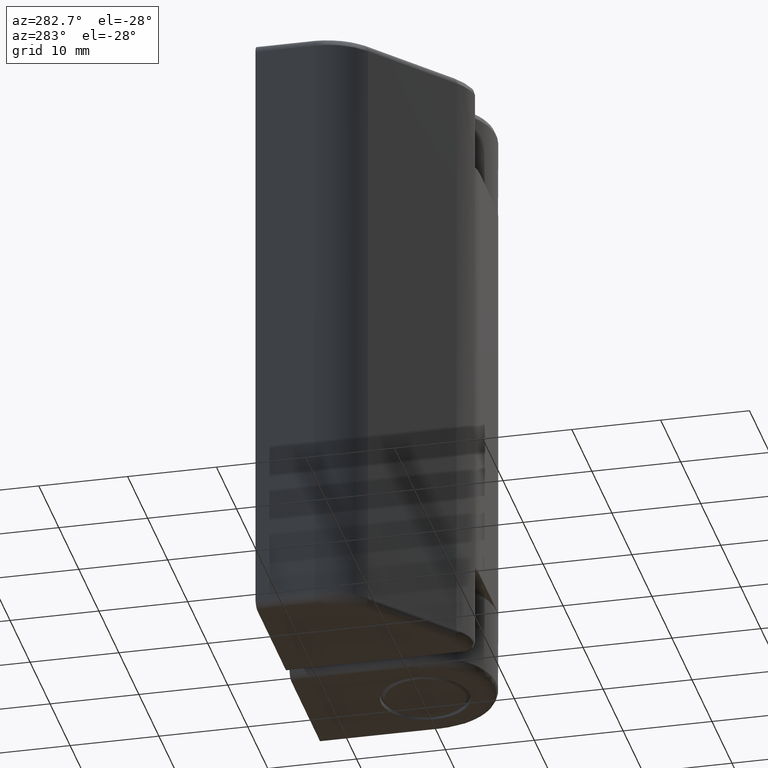
[diagram: clean part render]
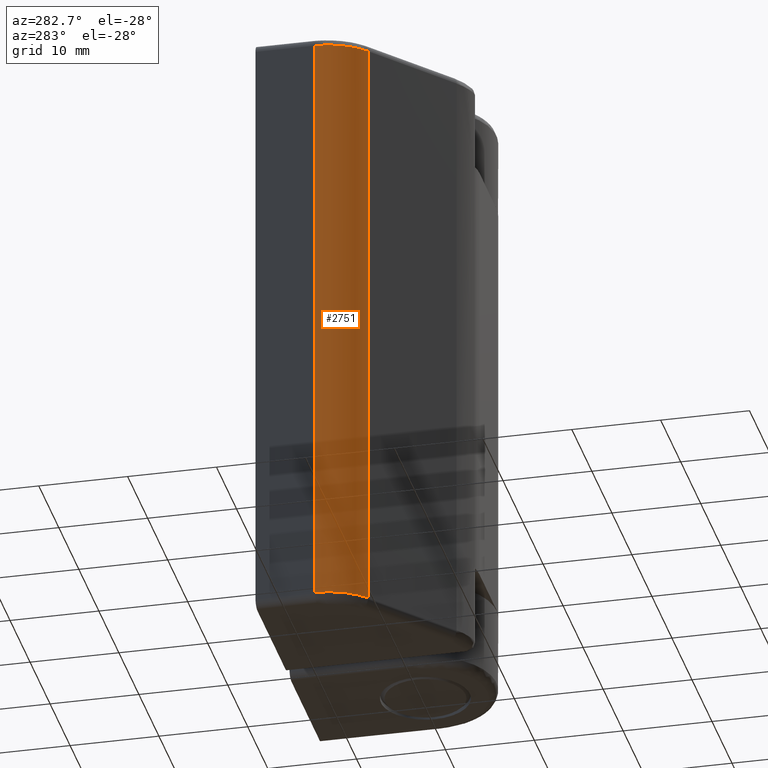
[diagram: same view with one face highlighted and labeled with its STEP entity id]
A machine part, auxiliary view. The second image highlights one B-rep face of the part: STEP entity #2751.
In plain terms, the highlighted face is a freeform B-spline surface patch.
Its self-contained STEP definition (entity closure, byte-faithful):
#1661=CARTESIAN_POINT('',(-25.0,6.808834000000000,1.0));
#1662=VERTEX_POINT('',#1661);
#1703=CARTESIAN_POINT('',(-22.448097949442602,1.403797031378750,1.0));
#1704=VERTEX_POINT('',#1703);
#1718=CARTESIAN_POINT('',(-25.0,6.808834000000000,1.0));
#1719=CARTESIAN_POINT('',(-24.999999999999993,3.503895577264769,1.0));
#1720=CARTESIAN_POINT('',(-22.448097949442602,1.403797031378750,1.0));
#1728=(BOUNDED_CURVE()B_SPLINE_CURVE(2,(#1718,#1719,#1720),.UNSPECIFIED.,.F.,.U.)CURVE()GEOMETRIC_REPRESENTATION_ITEM()QUASI_UNIFORM_CURVE()RATIONAL_B_SPLINE_CURVE((1.0,0.904279427004203,1.0))REPRESENTATION_ITEM(''));
#1729=EDGE_CURVE('',#1662,#1704,#1728,.T.);
#1991=CARTESIAN_POINT('',(-25.0,6.808834000000000,69.0));
#1992=VERTEX_POINT('',#1991);
#2038=CARTESIAN_POINT('',(-22.448097949442602,1.403797031378750,69.0));
#2039=VERTEX_POINT('',#2038);
#2071=CARTESIAN_POINT('',(-22.448097949442602,1.403797031378750,69.0));
#2072=CARTESIAN_POINT('',(-24.999999999999989,3.503895577264768,69.0));
#2073=CARTESIAN_POINT('',(-25.0,6.808834000000000,69.0));
#2081=(BOUNDED_CURVE()B_SPLINE_CURVE(2,(#2071,#2072,#2073),.UNSPECIFIED.,.F.,.U.)CURVE()GEOMETRIC_REPRESENTATION_ITEM()QUASI_UNIFORM_CURVE()RATIONAL_B_SPLINE_CURVE((1.0,0.904279427004203,1.0))REPRESENTATION_ITEM(''));
#2082=EDGE_CURVE('',#2039,#1992,#2081,.T.);
#2716=CARTESIAN_POINT('',(-22.448097949442602,1.403797031378750,69.0));
#2717=CARTESIAN_POINT('',(-22.448097949442602,1.403797031378750,1.0));
#2718=QUASI_UNIFORM_CURVE('',1,(#2716,#2717),.UNSPECIFIED.,.F.,.U.);
#2719=EDGE_CURVE('',#2039,#1704,#2718,.T.);
#2727=CARTESIAN_POINT('',(-24.997601274828899,6.992072638155122,70.700000000000017));
#2728=CARTESIAN_POINT('',(-24.997601274828899,6.992072638155122,-0.742500000000007));
#2729=CARTESIAN_POINT('',(-25.091947403090110,3.389139359220388,70.700000000000031));
#2730=CARTESIAN_POINT('',(-25.091947403090110,3.389139359220388,-0.742500000000007));
#2731=CARTESIAN_POINT('',(-22.214054086215317,1.219402172125903,70.700000000000017));
#2732=CARTESIAN_POINT('',(-22.214054086215317,1.219402172125903,-0.742500000000007));
#2740=(BOUNDED_SURFACE()B_SPLINE_SURFACE(1,2,((#2727,#2729,#2731),(#2728,#2730,#2732)),.UNSPECIFIED.,.F.,.F.,.U.)B_SPLINE_SURFACE_WITH_KNOTS((2,2),(3,3),(0.0,71.442500000000038),(0.0,6.785056104929226),.UNSPECIFIED.)GEOMETRIC_REPRESENTATION_ITEM()RATIONAL_B_SPLINE_SURFACE(((1.0,0.888106860748348,0.997829208428074),(1.0,0.888106860748348,0.997829208428074)))REPRESENTATION_ITEM('')SURFACE());
#2741=CARTESIAN_POINT('',(-25.0,6.808834000000000,69.0));
#2742=CARTESIAN_POINT('',(-25.0,6.808834000000000,1.0));
#2743=QUASI_UNIFORM_CURVE('',1,(#2741,#2742),.UNSPECIFIED.,.F.,.U.);
#2744=EDGE_CURVE('',#1992,#1662,#2743,.T.);
#2745=ORIENTED_EDGE('',*,*,#2744,.T.);
#2746=ORIENTED_EDGE('',*,*,#1729,.T.);
#2747=ORIENTED_EDGE('',*,*,#2719,.F.);
#2748=ORIENTED_EDGE('',*,*,#2082,.T.);
#2749=EDGE_LOOP('',(#2745,#2746,#2747,#2748));
#2750=FACE_OUTER_BOUND('',#2749,.T.);
#2751=ADVANCED_FACE('',(#2750),#2740,.T.);